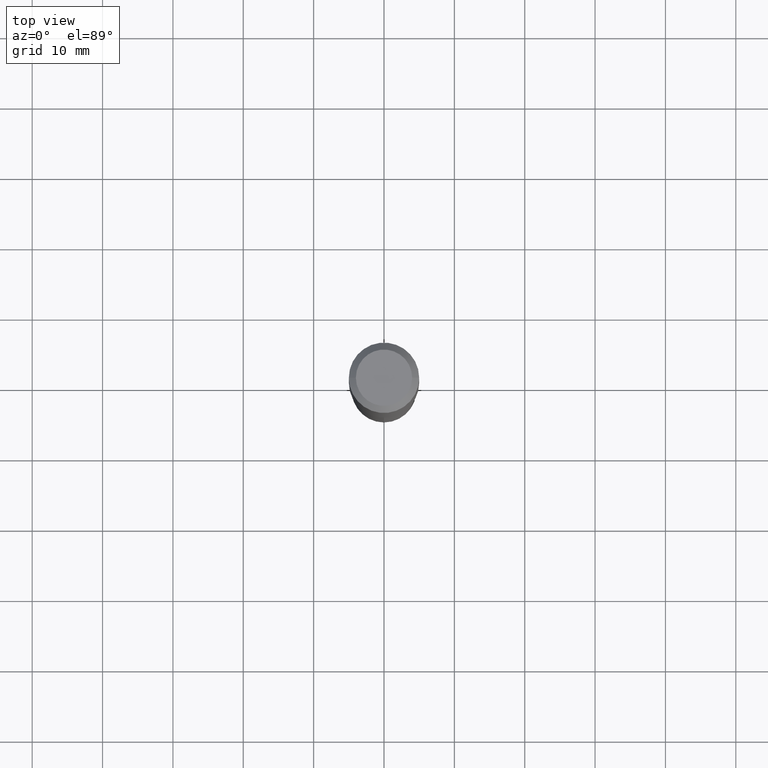
[diagram: clean part render]
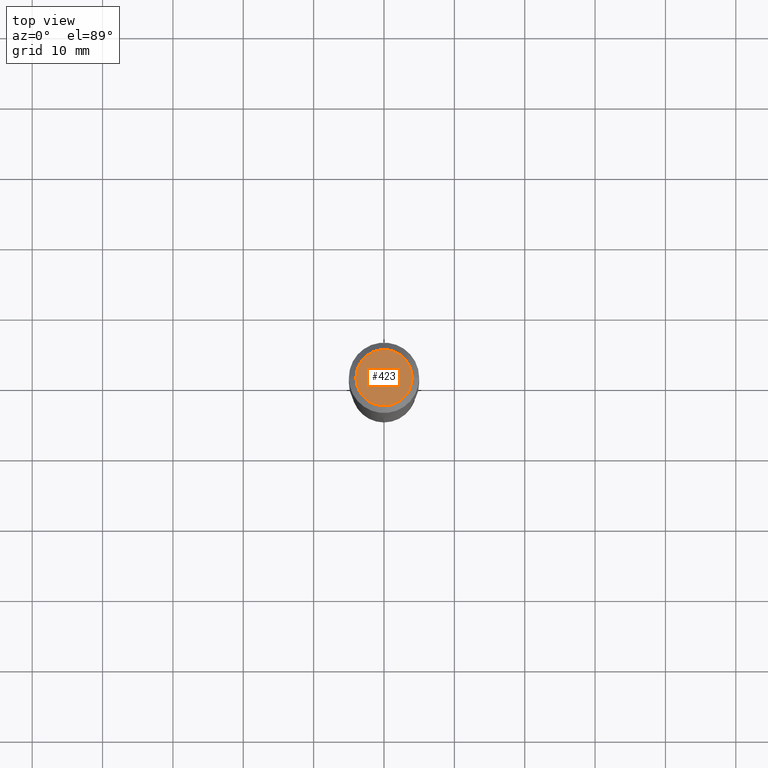
[diagram: same view with one face highlighted and labeled with its STEP entity id]
A machine part, top view. The second image highlights one B-rep face of the part: STEP entity #423.
In plain terms, the highlighted planar face has unit normal (0, -0, -1).
Its self-contained STEP definition (entity closure, byte-faithful):
#2 = DIRECTION ( 'NONE',  ( -1.000000000000000000, 6.982962677686265922E-15, -4.876176775795935793E-29 ) ) ;
#9 = CARTESIAN_POINT ( 'NONE',  ( -9.427742298522567634E-47, 1.346031739168368355E-32, 3.855188123715870730E-18 ) ) ;
#33 = EDGE_CURVE ( 'NONE', #181, #252, #298, .T. ) ;
#77 = PLANE ( 'NONE',  #400 ) ;
#91 = ORIENTED_EDGE ( 'NONE', *, *, #309, .T. ) ;
#155 = DIRECTION ( 'NONE',  ( 1.000000000000000000, -6.982962677686265922E-15, 4.876223630392693006E-29 ) ) ;
#181 = VERTEX_POINT ( 'NONE', #262 ) ;
#187 = ORIENTED_EDGE ( 'NONE', *, *, #33, .T. ) ;
#237 = DIRECTION ( 'NONE',  ( -2.445468806185136597E-29, 3.491481338843145583E-15, 1.000000000000000000 ) ) ;
#242 = DIRECTION ( 'NONE',  ( 1.000000000000000000, -6.982962677686265922E-15, 4.876223630392693006E-29 ) ) ;
#252 = VERTEX_POINT ( 'NONE', #410 ) ;
#262 = CARTESIAN_POINT ( 'NONE',  ( 0.1574800000000000089, -1.284169937930321189E-15, 3.855188123724205385E-18 ) ) ;
#298 = CIRCLE ( 'NONE', #354, 0.1574800000000000089 ) ;
#309 = EDGE_CURVE ( 'NONE', #252, #181, #327, .T. ) ;
#327 = CIRCLE ( 'NONE', #394, 0.1574800000000000089 ) ;
#354 = AXIS2_PLACEMENT_3D ( 'NONE', #490, #237, #155 ) ;
#372 = CARTESIAN_POINT ( 'NONE',  ( -4.713871149261283817E-47, 6.730158695841841775E-33, 1.927594061857935365E-18 ) ) ;
#375 = DIRECTION ( 'NONE',  ( 2.438088387897960049E-29, -3.491481338843145188E-15, -1.000000000000000000 ) ) ;
#391 = EDGE_LOOP ( 'NONE', ( #91, #187 ) ) ;
#394 = AXIS2_PLACEMENT_3D ( 'NONE', #9, #450, #242 ) ;
#400 = AXIS2_PLACEMENT_3D ( 'NONE', #372, #375, #2 ) ;
#410 = CARTESIAN_POINT ( 'NONE',  ( -0.1574800000000000089, 1.168406772637159618E-15, 3.855188123707939751E-18 ) ) ;
#423 = ADVANCED_FACE ( 'NONE', ( #483 ), #77, .F. ) ;
#450 = DIRECTION ( 'NONE',  ( -2.445468806185136597E-29, 3.491481338843145583E-15, 1.000000000000000000 ) ) ;
#483 = FACE_OUTER_BOUND ( 'NONE', #391, .T. ) ;
#490 = CARTESIAN_POINT ( 'NONE',  ( -9.427742298522567634E-47, 1.346031739168368355E-32, 3.855188123715870730E-18 ) ) ;